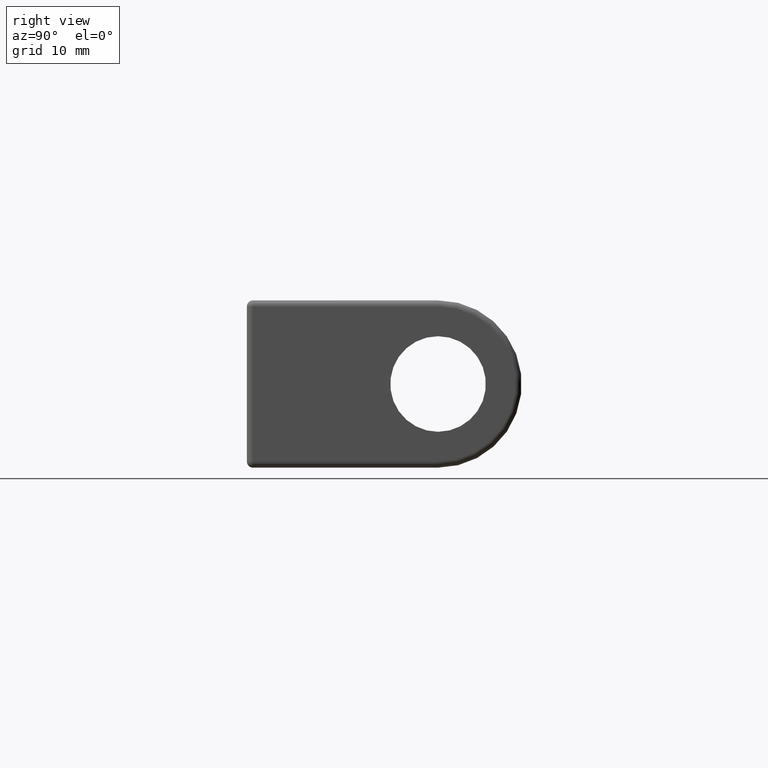
[diagram: clean part render]
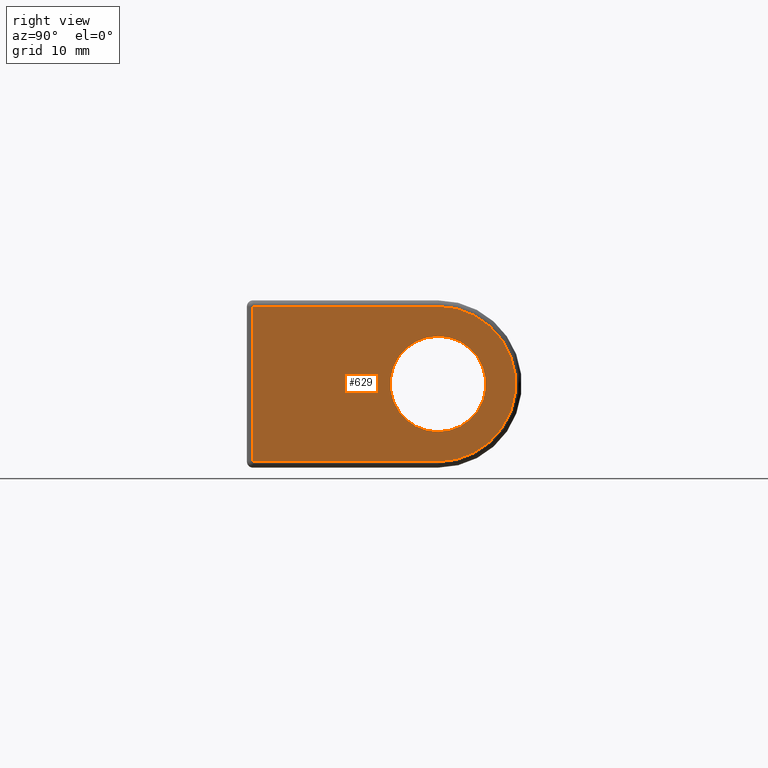
[diagram: same view with one face highlighted and labeled with its STEP entity id]
A machine part, right view. The second image highlights one B-rep face of the part: STEP entity #629.
In plain terms, the highlighted planar face has unit normal (1, -0, 0).
Its self-contained STEP definition (entity closure, byte-faithful):
#23=FACE_BOUND('',#132,.T.);
#43=PLANE('',#711);
#83=FACE_OUTER_BOUND('',#131,.T.);
#131=EDGE_LOOP('',(#529,#530,#531,#532));
#132=EDGE_LOOP('',(#533));
#193=CIRCLE('',#697,6.5);
#199=CIRCLE('',#712,4.);
#234=LINE('',#1063,#268);
#235=LINE('',#1067,#269);
#237=LINE('',#1074,#271);
#268=VECTOR('',#856,13.);
#269=VECTOR('',#861,15.5);
#271=VECTOR('',#871,15.5);
#308=VERTEX_POINT('',#1049);
#312=VERTEX_POINT('',#1058);
#313=VERTEX_POINT('',#1065);
#314=VERTEX_POINT('',#1069);
#319=VERTEX_POINT('',#1099);
#382=EDGE_CURVE('',#308,#312,#234,.T.);
#384=EDGE_CURVE('',#312,#313,#235,.T.);
#386=EDGE_CURVE('',#313,#314,#193,.T.);
#388=EDGE_CURVE('',#314,#308,#237,.T.);
#401=EDGE_CURVE('',#319,#319,#199,.T.);
#529=ORIENTED_EDGE('',*,*,#382,.F.);
#530=ORIENTED_EDGE('',*,*,#388,.F.);
#531=ORIENTED_EDGE('',*,*,#386,.F.);
#532=ORIENTED_EDGE('',*,*,#384,.F.);
#533=ORIENTED_EDGE('',*,*,#401,.T.);
#629=ADVANCED_FACE('',(#83,#23),#43,.T.);
#697=AXIS2_PLACEMENT_3D('',#1071,#866,#867);
#711=AXIS2_PLACEMENT_3D('',#1098,#903,#904);
#712=AXIS2_PLACEMENT_3D('',#1100,#905,#906);
#856=DIRECTION('',(0.,0.,1.));
#861=DIRECTION('',(1.93082265152201E-16,1.,0.));
#866=DIRECTION('center_axis',(-1.,1.93082265152201E-16,0.));
#867=DIRECTION('ref_axis',(1.93082265152201E-16,1.,6.12323399573677E-17));
#871=DIRECTION('',(-1.93082265152201E-16,-1.,0.));
#903=DIRECTION('center_axis',(1.,-1.93082265152201E-16,0.));
#904=DIRECTION('ref_axis',(3.5527136788005E-16,1.,0.));
#905=DIRECTION('center_axis',(-1.,1.93082265152201E-16,0.));
#906=DIRECTION('ref_axis',(0.,0.,1.));
#1049=CARTESIAN_POINT('',(27.5,-14.75,-6.5));
#1058=CARTESIAN_POINT('',(27.5,-14.75,6.5));
#1063=CARTESIAN_POINT('',(27.5,-14.75,0.));
#1065=CARTESIAN_POINT('',(27.5,0.750000000000017,6.5));
#1067=CARTESIAN_POINT('',(27.5,-10.7640374331551,6.5));
#1069=CARTESIAN_POINT('',(27.5,0.750000000000016,-6.5));
#1071=CARTESIAN_POINT('Origin',(27.5,0.750000000000016,0.));
#1074=CARTESIAN_POINT('',(27.5,-10.7640374331551,-6.5));
#1098=CARTESIAN_POINT('Origin',(27.5,-15.25,0.));
#1099=CARTESIAN_POINT('',(27.5,0.750000000000016,-4.));
#1100=CARTESIAN_POINT('Origin',(27.5,0.750000000000017,0.));